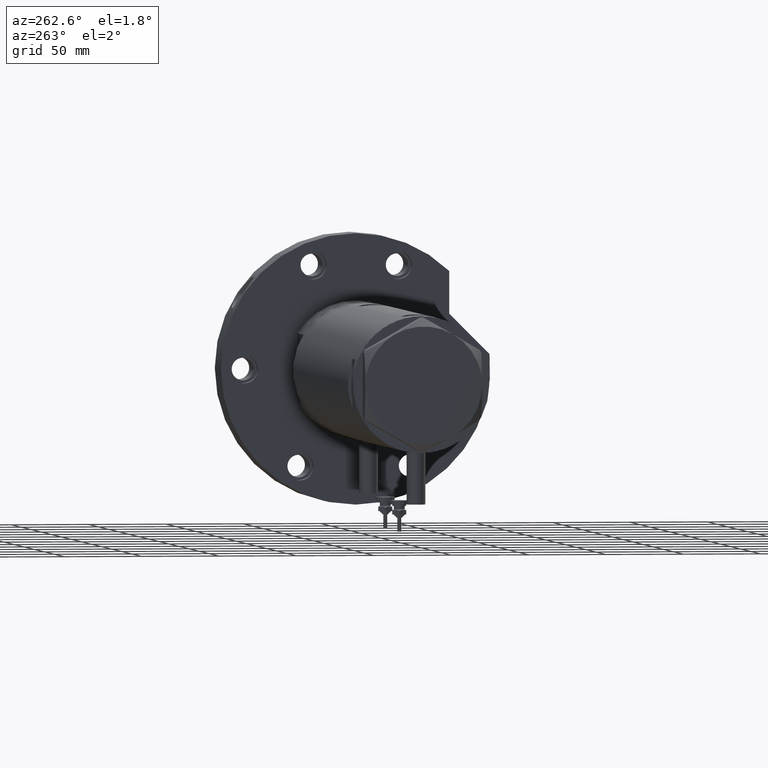
[diagram: clean part render]
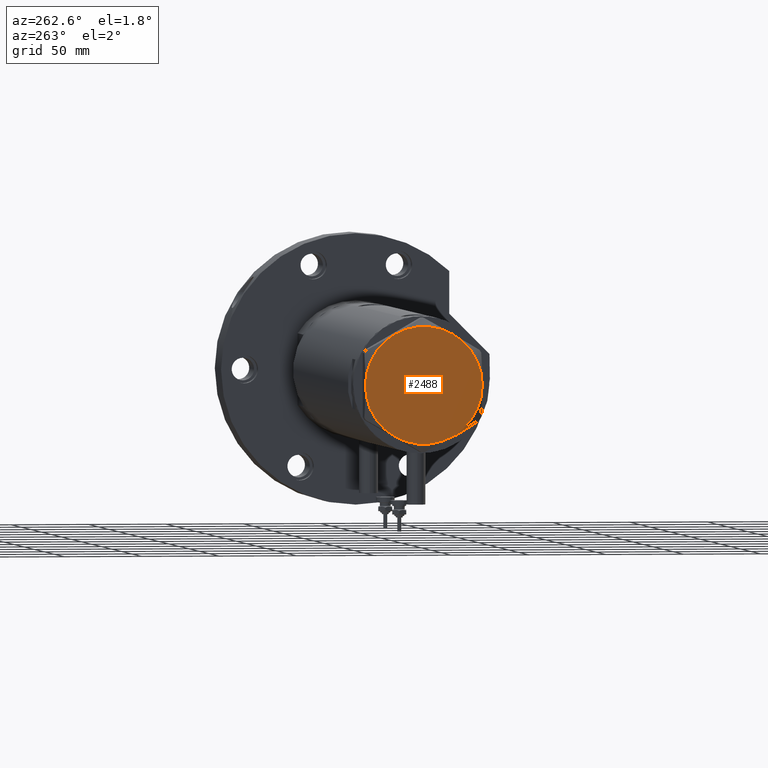
[diagram: same view with one face highlighted and labeled with its STEP entity id]
A machine part, auxiliary view. The second image highlights one B-rep face of the part: STEP entity #2488.
In plain terms, the highlighted planar face has unit normal (-1, -0, 0).
Its self-contained STEP definition (entity closure, byte-faithful):
#180 = CIRCLE ( 'NONE', #1145, 37.75000000000000000 ) ;
#183 = DIRECTION ( 'NONE',  ( 1.000000000000000000, 0.000000000000000000, 0.000000000000000000 ) ) ;
#395 = FACE_OUTER_BOUND ( 'NONE', #4214, .T. ) ;
#410 = CIRCLE ( 'NONE', #2363, 37.75000000000000000 ) ;
#434 = PLANE ( 'NONE',  #4686 ) ;
#440 = EDGE_CURVE ( 'NONE', #2788, #3871, #4193, .T. ) ;
#524 = DIRECTION ( 'NONE',  ( 1.000000000000000000, 0.000000000000000000, 0.000000000000000000 ) ) ;
#539 = ORIENTED_EDGE ( 'NONE', *, *, #1213, .T. ) ;
#575 = CARTESIAN_POINT ( 'NONE',  ( -18.87499999999999645, 32.69245899286256218, 13.00000000000000000 ) ) ;
#970 = AXIS2_PLACEMENT_3D ( 'NONE', #5173, #2917, #7393 ) ;
#985 = VERTEX_POINT ( 'NONE', #575 ) ;
#1101 = CIRCLE ( 'NONE', #6236, 37.75000000000000000 ) ;
#1145 = AXIS2_PLACEMENT_3D ( 'NONE', #4504, #6907, #524 ) ;
#1213 = EDGE_CURVE ( 'NONE', #3871, #4792, #180, .T. ) ;
#1372 = DIRECTION ( 'NONE',  ( 0.000000000000000000, 0.000000000000000000, 1.000000000000000000 ) ) ;
#1575 = ORIENTED_EDGE ( 'NONE', *, *, #2293, .T. ) ;
#1583 = CIRCLE ( 'NONE', #970, 37.75000000000000000 ) ;
#1698 = DIRECTION ( 'NONE',  ( 0.000000000000000000, 0.000000000000000000, 1.000000000000000000 ) ) ;
#1788 = ORIENTED_EDGE ( 'NONE', *, *, #440, .T. ) ;
#2293 = EDGE_CURVE ( 'NONE', #2947, #2788, #410, .T. ) ;
#2363 = AXIS2_PLACEMENT_3D ( 'NONE', #6616, #3720, #4685 ) ;
#2488 = ADVANCED_FACE ( 'NONE', ( #395 ), #434, .T. ) ;
#2612 = AXIS2_PLACEMENT_3D ( 'NONE', #2939, #1372, #7176 ) ;
#2788 = VERTEX_POINT ( 'NONE', #7099 ) ;
#2917 = DIRECTION ( 'NONE',  ( 0.000000000000000000, 0.000000000000000000, 1.000000000000000000 ) ) ;
#2939 = CARTESIAN_POINT ( 'NONE',  ( 0.000000000000000000, 0.000000000000000000, 13.00000000000000000 ) ) ;
#2947 = VERTEX_POINT ( 'NONE', #6403 ) ;
#3643 = ORIENTED_EDGE ( 'NONE', *, *, #6636, .T. ) ;
#3692 = DIRECTION ( 'NONE',  ( 0.000000000000000000, 0.000000000000000000, 1.000000000000000000 ) ) ;
#3720 = DIRECTION ( 'NONE',  ( 0.000000000000000000, 0.000000000000000000, 1.000000000000000000 ) ) ;
#3871 = VERTEX_POINT ( 'NONE', #5061 ) ;
#3983 = CARTESIAN_POINT ( 'NONE',  ( 0.000000000000000000, 0.000000000000000000, 13.00000000000000000 ) ) ;
#4193 = CIRCLE ( 'NONE', #2612, 37.75000000000000000 ) ;
#4214 = EDGE_LOOP ( 'NONE', ( #539, #4609, #4431, #3643, #1575, #1788 ) ) ;
#4431 = ORIENTED_EDGE ( 'NONE', *, *, #5198, .T. ) ;
#4504 = CARTESIAN_POINT ( 'NONE',  ( 0.000000000000000000, 0.000000000000000000, 13.00000000000000000 ) ) ;
#4609 = ORIENTED_EDGE ( 'NONE', *, *, #6937, .T. ) ;
#4682 = VERTEX_POINT ( 'NONE', #5791 ) ;
#4685 = DIRECTION ( 'NONE',  ( 1.000000000000000000, 0.000000000000000000, 0.000000000000000000 ) ) ;
#4686 = AXIS2_PLACEMENT_3D ( 'NONE', #3983, #6922, #5128 ) ;
#4792 = VERTEX_POINT ( 'NONE', #5683 ) ;
#5061 = CARTESIAN_POINT ( 'NONE',  ( 18.87499999999998579, -32.69245899286256218, 13.00000000000000000 ) ) ;
#5128 = DIRECTION ( 'NONE',  ( 1.000000000000000000, 0.000000000000000000, -0.000000000000000000 ) ) ;
#5173 = CARTESIAN_POINT ( 'NONE',  ( 0.000000000000000000, 0.000000000000000000, 13.00000000000000000 ) ) ;
#5198 = EDGE_CURVE ( 'NONE', #4682, #985, #1583, .T. ) ;
#5683 = CARTESIAN_POINT ( 'NONE',  ( 37.75000000000000711, 1.802777518484591547E-14, 13.00000000000000000 ) ) ;
#5791 = CARTESIAN_POINT ( 'NONE',  ( 18.87500000000000000, 32.69245899286255508, 13.00000000000000000 ) ) ;
#6236 = AXIS2_PLACEMENT_3D ( 'NONE', #6353, #1698, #6321 ) ;
#6321 = DIRECTION ( 'NONE',  ( 1.000000000000000000, 0.000000000000000000, 0.000000000000000000 ) ) ;
#6353 = CARTESIAN_POINT ( 'NONE',  ( 0.000000000000000000, 0.000000000000000000, 13.00000000000000000 ) ) ;
#6403 = CARTESIAN_POINT ( 'NONE',  ( -37.75000000000000000, -1.201851678989727067E-14, 13.00000000000000000 ) ) ;
#6591 = CARTESIAN_POINT ( 'NONE',  ( 0.000000000000000000, 0.000000000000000000, 13.00000000000000000 ) ) ;
#6616 = CARTESIAN_POINT ( 'NONE',  ( 0.000000000000000000, 0.000000000000000000, 13.00000000000000000 ) ) ;
#6636 = EDGE_CURVE ( 'NONE', #985, #2947, #7444, .T. ) ;
#6844 = AXIS2_PLACEMENT_3D ( 'NONE', #6591, #3692, #183 ) ;
#6907 = DIRECTION ( 'NONE',  ( 0.000000000000000000, 0.000000000000000000, 1.000000000000000000 ) ) ;
#6922 = DIRECTION ( 'NONE',  ( 0.000000000000000000, 0.000000000000000000, 1.000000000000000000 ) ) ;
#6937 = EDGE_CURVE ( 'NONE', #4792, #4682, #1101, .T. ) ;
#7099 = CARTESIAN_POINT ( 'NONE',  ( -18.87499999999999645, -32.69245899286255508, 13.00000000000000000 ) ) ;
#7176 = DIRECTION ( 'NONE',  ( 1.000000000000000000, 0.000000000000000000, 0.000000000000000000 ) ) ;
#7393 = DIRECTION ( 'NONE',  ( 1.000000000000000000, 0.000000000000000000, 0.000000000000000000 ) ) ;
#7444 = CIRCLE ( 'NONE', #6844, 37.75000000000000000 ) ;